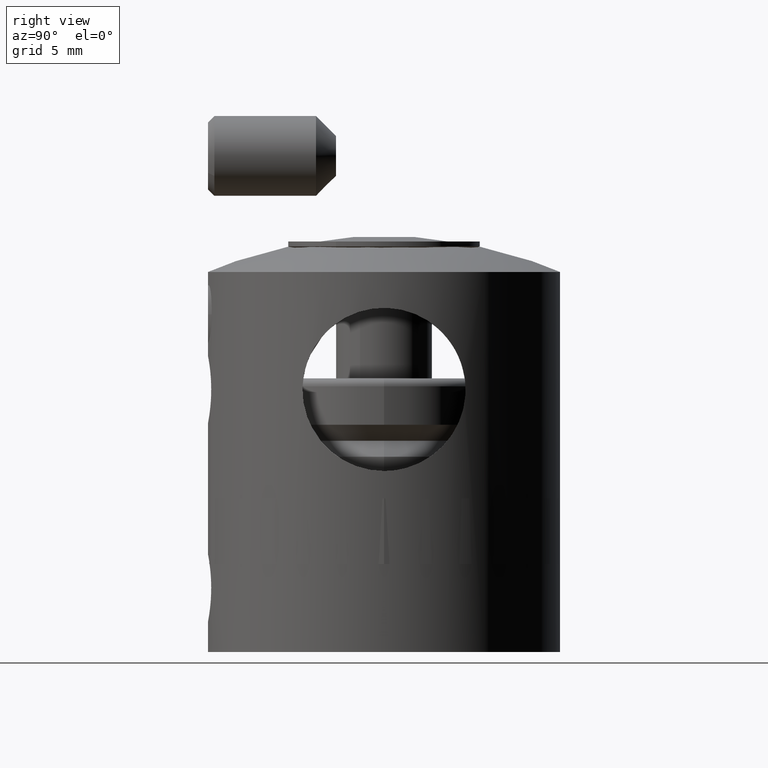
[diagram: clean part render]
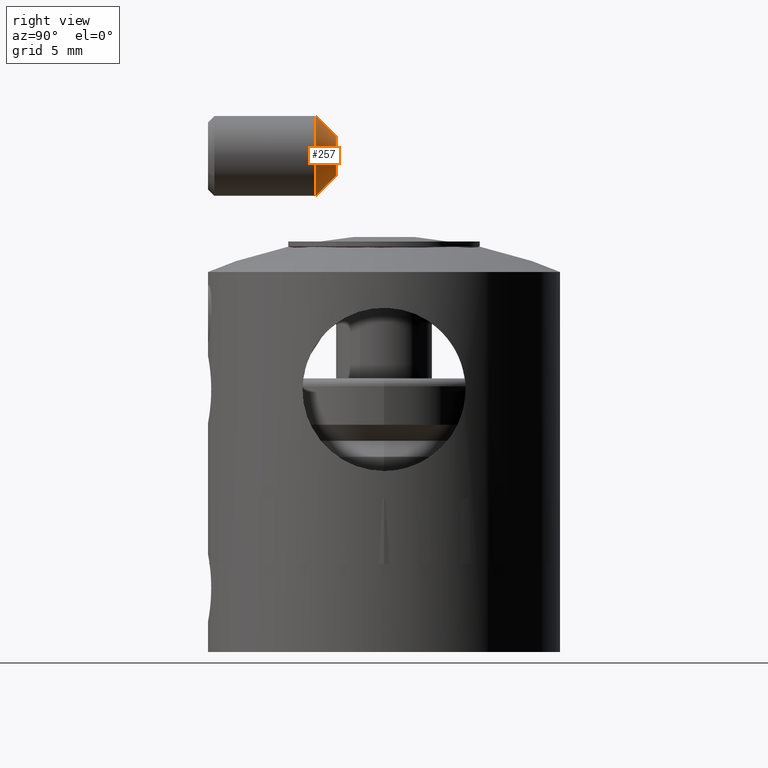
[diagram: same view with one face highlighted and labeled with its STEP entity id]
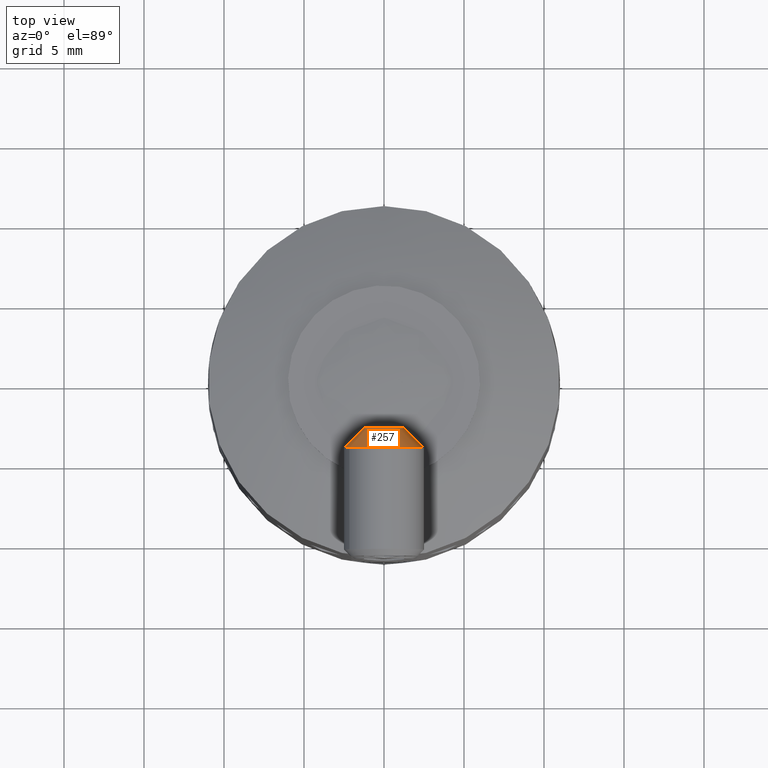
[diagram: same view with one face highlighted and labeled with its STEP entity id]
A machine part, right view. The second image highlights one B-rep face of the part: STEP entity #257.
A second angle (top view) of the same face is appended — the face is thin or edge-on in the first view.
In plain terms, the highlighted conical surface has half-angle 45 deg.
Its self-contained STEP definition (entity closure, byte-faithful):
#257 = ADVANCED_FACE ( 'NONE', ( #2917, #500 ), #1227, .T. ) ;
#311 = DIRECTION ( 'NONE',  ( -0.000000000000000000, -0.000000000000000000, 1.000000000000000000 ) ) ;
#485 = VERTEX_POINT ( 'NONE', #2636 ) ;
#500 = FACE_OUTER_BOUND ( 'NONE', #1457, .T. ) ;
#864 = CARTESIAN_POINT ( 'NONE',  ( 1.249999999999994671, 0.000000000000000000, -8.000000000000000000 ) ) ;
#1193 = DIRECTION ( 'NONE',  ( 0.000000000000000000, 0.000000000000000000, -1.000000000000000000 ) ) ;
#1227 = CONICAL_SURFACE ( 'NONE', #3406, 2.500000000000000000, 0.7853981633974511656 ) ;
#1457 = EDGE_LOOP ( 'NONE', ( #5322 ) ) ;
#1497 = AXIS2_PLACEMENT_3D ( 'NONE', #5033, #4670, #2978 ) ;
#1592 = CIRCLE ( 'NONE', #2609, 1.249999999999994671 ) ;
#1932 = VERTEX_POINT ( 'NONE', #864 ) ;
#1982 = DIRECTION ( 'NONE',  ( 1.000000000000000000, 0.000000000000000000, 0.000000000000000000 ) ) ;
#2062 = CARTESIAN_POINT ( 'NONE',  ( 0.000000000000000000, 0.000000000000000000, -8.000000000000000000 ) ) ;
#2171 = ORIENTED_EDGE ( 'NONE', *, *, #3312, .F. ) ;
#2609 = AXIS2_PLACEMENT_3D ( 'NONE', #2062, #1193, #3307 ) ;
#2636 = CARTESIAN_POINT ( 'NONE',  ( 2.500000000000000000, 0.000000000000000000, -6.750000000000001776 ) ) ;
#2917 = FACE_BOUND ( 'NONE', #4316, .T. ) ;
#2978 = DIRECTION ( 'NONE',  ( 1.000000000000000000, 0.000000000000000000, 0.000000000000000000 ) ) ;
#3307 = DIRECTION ( 'NONE',  ( 1.000000000000000000, 0.000000000000000000, 0.000000000000000000 ) ) ;
#3312 = EDGE_CURVE ( 'NONE', #1932, #1932, #1592, .T. ) ;
#3406 = AXIS2_PLACEMENT_3D ( 'NONE', #4412, #311, #1982 ) ;
#4280 = CIRCLE ( 'NONE', #1497, 2.500000000000000000 ) ;
#4316 = EDGE_LOOP ( 'NONE', ( #2171 ) ) ;
#4412 = CARTESIAN_POINT ( 'NONE',  ( 0.000000000000000000, 0.000000000000000000, -6.750000000000001776 ) ) ;
#4670 = DIRECTION ( 'NONE',  ( -0.000000000000000000, -0.000000000000000000, 1.000000000000000000 ) ) ;
#5033 = CARTESIAN_POINT ( 'NONE',  ( 0.000000000000000000, 0.000000000000000000, -6.750000000000001776 ) ) ;
#5173 = EDGE_CURVE ( 'NONE', #485, #485, #4280, .T. ) ;
#5322 = ORIENTED_EDGE ( 'NONE', *, *, #5173, .F. ) ;